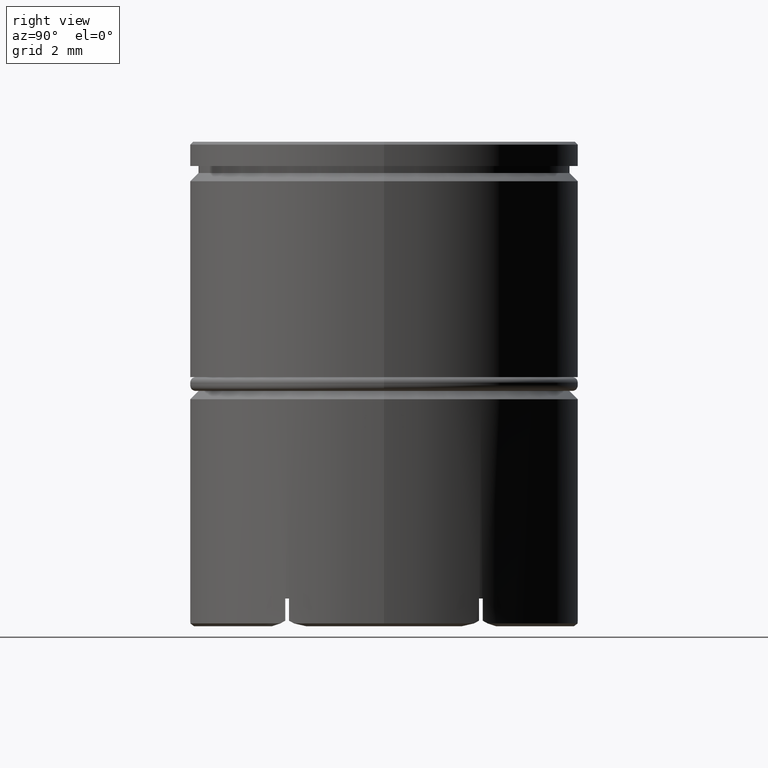
[diagram: clean part render]
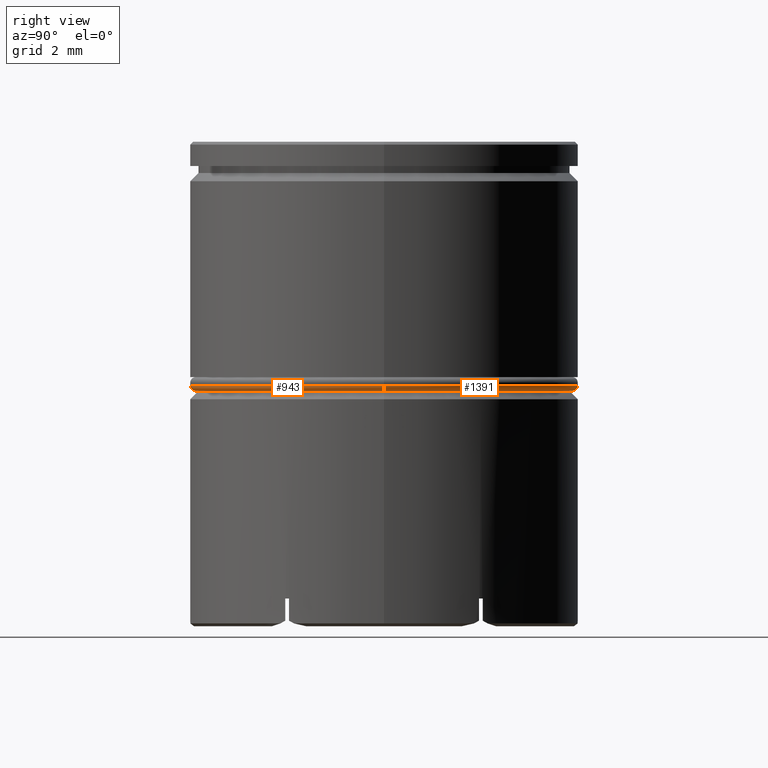
[diagram: same view with one multi-face feature highlighted, each face labeled with its STEP entity id]
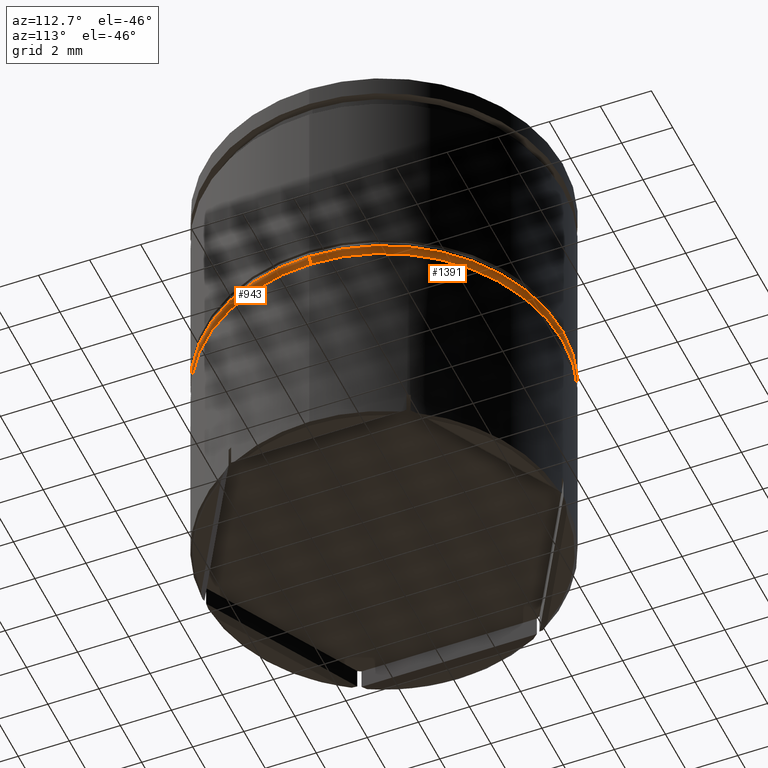
[diagram: same view with one multi-face feature highlighted, each face labeled with its STEP entity id]
A machine part, right view. The highlighted faces form ONE feature: a constant-radius fillet chain: 2 tangent blend faces with common blend radius 0.2 mm. The faces share edges in the B-rep.
A second angle (auxiliary view) of the same feature is appended — it is thin or edge-on in the first view.
Their STEP definitions:
[1] entity #1391 (Torus):
#102 = VERTEX_POINT ( 'NONE', #1436 ) ;
#119 = CARTESIAN_POINT ( 'NONE',  ( 0.000000000000000000, 0.000000000000000000, -9.000000000000001776 ) ) ;
#129 = ORIENTED_EDGE ( 'NONE', *, *, #1433, .F. ) ;
#171 = ORIENTED_EDGE ( 'NONE', *, *, #1611, .T. ) ;
#194 = VERTEX_POINT ( 'NONE', #1129 ) ;
#240 = AXIS2_PLACEMENT_3D ( 'NONE', #310, #1053, #1567 ) ;
#280 = DIRECTION ( 'NONE',  ( 1.224646799147353207E-16, 1.000000000000000000, -0.000000000000000000 ) ) ;
#310 = CARTESIAN_POINT ( 'NONE',  ( 0.000000000000000000, 0.000000000000000000, -8.799999999999998934 ) ) ;
#319 = FACE_OUTER_BOUND ( 'NONE', #545, .T. ) ;
#450 = AXIS2_PLACEMENT_3D ( 'NONE', #831, #1467, #712 ) ;
#469 = CARTESIAN_POINT ( 'NONE',  ( 6.800000000000001599, 0.000000000000000000, -8.799999999999998934 ) ) ;
#490 = DIRECTION ( 'NONE',  ( -0.000000000000000000, -0.000000000000000000, -1.000000000000000000 ) ) ;
#545 = EDGE_LOOP ( 'NONE', ( #129, #171, #1099, #691 ) ) ;
#593 = AXIS2_PLACEMENT_3D ( 'NONE', #469, #768, #1539 ) ;
#691 = ORIENTED_EDGE ( 'NONE', *, *, #713, .F. ) ;
#712 = DIRECTION ( 'NONE',  ( 1.000000000000000000, 0.000000000000000000, 0.000000000000000000 ) ) ;
#713 = EDGE_CURVE ( 'NONE', #1474, #102, #1110, .T. ) ;
#768 = DIRECTION ( 'NONE',  ( 0.000000000000000000, -1.000000000000000000, 0.000000000000000000 ) ) ;
#781 = CARTESIAN_POINT ( 'NONE',  ( -6.800000000000001599, 8.327598234202003091E-16, -8.799999999999998934 ) ) ;
#831 = CARTESIAN_POINT ( 'NONE',  ( 0.000000000000000000, 0.000000000000000000, -8.799999999999998934 ) ) ;
#903 = VERTEX_POINT ( 'NONE', #965 ) ;
#904 = CIRCLE ( 'NONE', #1510, 6.800000000000001599 ) ;
#965 = CARTESIAN_POINT ( 'NONE',  ( -7.000000000000000888, 8.572527594031474176E-16, -8.799999999999998934 ) ) ;
#1006 = CARTESIAN_POINT ( 'NONE',  ( 6.800000000000001599, 0.000000000000000000, -9.000000000000001776 ) ) ;
#1053 = DIRECTION ( 'NONE',  ( 0.000000000000000000, 0.000000000000000000, 1.000000000000000000 ) ) ;
#1077 = CIRCLE ( 'NONE', #240, 7.000000000000000888 ) ;
#1078 = CIRCLE ( 'NONE', #1240, 0.1999999999999996503 ) ;
#1099 = ORIENTED_EDGE ( 'NONE', *, *, #1226, .F. ) ;
#1110 = CIRCLE ( 'NONE', #593, 0.2000000000000005107 ) ;
#1129 = CARTESIAN_POINT ( 'NONE',  ( -6.800000000000001599, 8.450062914116737647E-16, -9.000000000000001776 ) ) ;
#1226 = EDGE_CURVE ( 'NONE', #102, #903, #1077, .T. ) ;
#1240 = AXIS2_PLACEMENT_3D ( 'NONE', #781, #280, #1565 ) ;
#1372 = DIRECTION ( 'NONE',  ( 1.000000000000000000, 0.000000000000000000, 0.000000000000000000 ) ) ;
#1391 = ADVANCED_FACE ( 'NONE', ( #319 ), #1536, .T. ) ;
#1433 = EDGE_CURVE ( 'NONE', #194, #1474, #904, .T. ) ;
#1436 = CARTESIAN_POINT ( 'NONE',  ( 7.000000000000000888, 0.000000000000000000, -8.799999999999998934 ) ) ;
#1467 = DIRECTION ( 'NONE',  ( 0.000000000000000000, 0.000000000000000000, 1.000000000000000000 ) ) ;
#1474 = VERTEX_POINT ( 'NONE', #1006 ) ;
#1510 = AXIS2_PLACEMENT_3D ( 'NONE', #119, #490, #1372 ) ;
#1536 = TOROIDAL_SURFACE ( 'NONE', #450, 6.800000000000001599, 0.2000000000000000111 ) ;
#1539 = DIRECTION ( 'NONE',  ( 0.000000000000000000, 0.000000000000000000, -1.000000000000000000 ) ) ;
#1565 = DIRECTION ( 'NONE',  ( -1.000000000000000000, 1.224646799147353454E-16, 0.000000000000000000 ) ) ;
#1567 = DIRECTION ( 'NONE',  ( 1.000000000000000000, 0.000000000000000000, 0.000000000000000000 ) ) ;
#1611 = EDGE_CURVE ( 'NONE', #194, #903, #1078, .T. ) ;
[2] entity #943 (Torus):
#4 = TOROIDAL_SURFACE ( 'NONE', #1051, 6.800000000000001599, 0.2000000000000000111 ) ;
#60 = AXIS2_PLACEMENT_3D ( 'NONE', #793, #189, #161 ) ;
#99 = ORIENTED_EDGE ( 'NONE', *, *, #1042, .F. ) ;
#102 = VERTEX_POINT ( 'NONE', #1436 ) ;
#106 = ORIENTED_EDGE ( 'NONE', *, *, #713, .T. ) ;
#161 = DIRECTION ( 'NONE',  ( 1.000000000000000000, 0.000000000000000000, 0.000000000000000000 ) ) ;
#189 = DIRECTION ( 'NONE',  ( 0.000000000000000000, 0.000000000000000000, 1.000000000000000000 ) ) ;
#194 = VERTEX_POINT ( 'NONE', #1129 ) ;
#206 = DIRECTION ( 'NONE',  ( 1.000000000000000000, 0.000000000000000000, 0.000000000000000000 ) ) ;
#244 = DIRECTION ( 'NONE',  ( 1.000000000000000000, 0.000000000000000000, 0.000000000000000000 ) ) ;
#252 = CARTESIAN_POINT ( 'NONE',  ( 0.000000000000000000, 0.000000000000000000, -9.000000000000001776 ) ) ;
#280 = DIRECTION ( 'NONE',  ( 1.224646799147353207E-16, 1.000000000000000000, -0.000000000000000000 ) ) ;
#469 = CARTESIAN_POINT ( 'NONE',  ( 6.800000000000001599, 0.000000000000000000, -8.799999999999998934 ) ) ;
#499 = ORIENTED_EDGE ( 'NONE', *, *, #1611, .F. ) ;
#559 = CIRCLE ( 'NONE', #60, 7.000000000000000888 ) ;
#576 = FACE_OUTER_BOUND ( 'NONE', #1040, .T. ) ;
#593 = AXIS2_PLACEMENT_3D ( 'NONE', #469, #768, #1539 ) ;
#713 = EDGE_CURVE ( 'NONE', #1474, #102, #1110, .T. ) ;
#768 = DIRECTION ( 'NONE',  ( 0.000000000000000000, -1.000000000000000000, 0.000000000000000000 ) ) ;
#781 = CARTESIAN_POINT ( 'NONE',  ( -6.800000000000001599, 8.327598234202003091E-16, -8.799999999999998934 ) ) ;
#793 = CARTESIAN_POINT ( 'NONE',  ( 0.000000000000000000, 0.000000000000000000, -8.799999999999998934 ) ) ;
#832 = CARTESIAN_POINT ( 'NONE',  ( 0.000000000000000000, 0.000000000000000000, -8.799999999999998934 ) ) ;
#874 = CIRCLE ( 'NONE', #972, 6.800000000000001599 ) ;
#903 = VERTEX_POINT ( 'NONE', #965 ) ;
#943 = ADVANCED_FACE ( 'NONE', ( #576 ), #4, .T. ) ;
#965 = CARTESIAN_POINT ( 'NONE',  ( -7.000000000000000888, 8.572527594031474176E-16, -8.799999999999998934 ) ) ;
#972 = AXIS2_PLACEMENT_3D ( 'NONE', #252, #1374, #244 ) ;
#1006 = CARTESIAN_POINT ( 'NONE',  ( 6.800000000000001599, 0.000000000000000000, -9.000000000000001776 ) ) ;
#1040 = EDGE_LOOP ( 'NONE', ( #499, #99, #106, #1377 ) ) ;
#1042 = EDGE_CURVE ( 'NONE', #1474, #194, #874, .T. ) ;
#1051 = AXIS2_PLACEMENT_3D ( 'NONE', #832, #1336, #206 ) ;
#1078 = CIRCLE ( 'NONE', #1240, 0.1999999999999996503 ) ;
#1110 = CIRCLE ( 'NONE', #593, 0.2000000000000005107 ) ;
#1129 = CARTESIAN_POINT ( 'NONE',  ( -6.800000000000001599, 8.450062914116737647E-16, -9.000000000000001776 ) ) ;
#1240 = AXIS2_PLACEMENT_3D ( 'NONE', #781, #280, #1565 ) ;
#1336 = DIRECTION ( 'NONE',  ( 0.000000000000000000, 0.000000000000000000, 1.000000000000000000 ) ) ;
#1374 = DIRECTION ( 'NONE',  ( -0.000000000000000000, -0.000000000000000000, -1.000000000000000000 ) ) ;
#1377 = ORIENTED_EDGE ( 'NONE', *, *, #1636, .F. ) ;
#1436 = CARTESIAN_POINT ( 'NONE',  ( 7.000000000000000888, 0.000000000000000000, -8.799999999999998934 ) ) ;
#1474 = VERTEX_POINT ( 'NONE', #1006 ) ;
#1539 = DIRECTION ( 'NONE',  ( 0.000000000000000000, 0.000000000000000000, -1.000000000000000000 ) ) ;
#1565 = DIRECTION ( 'NONE',  ( -1.000000000000000000, 1.224646799147353454E-16, 0.000000000000000000 ) ) ;
#1611 = EDGE_CURVE ( 'NONE', #194, #903, #1078, .T. ) ;
#1636 = EDGE_CURVE ( 'NONE', #903, #102, #559, .T. ) ;